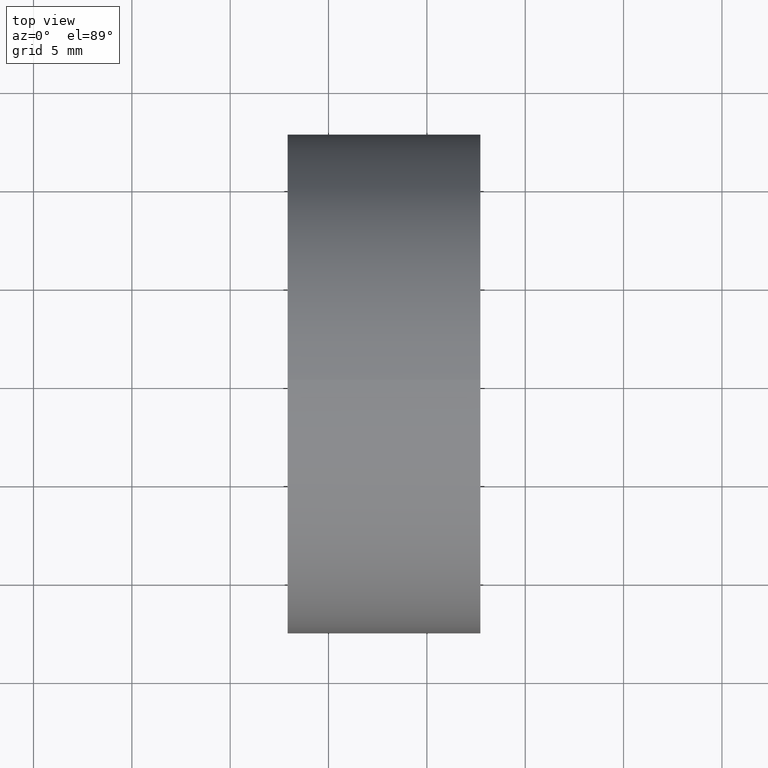
[diagram: clean part render]
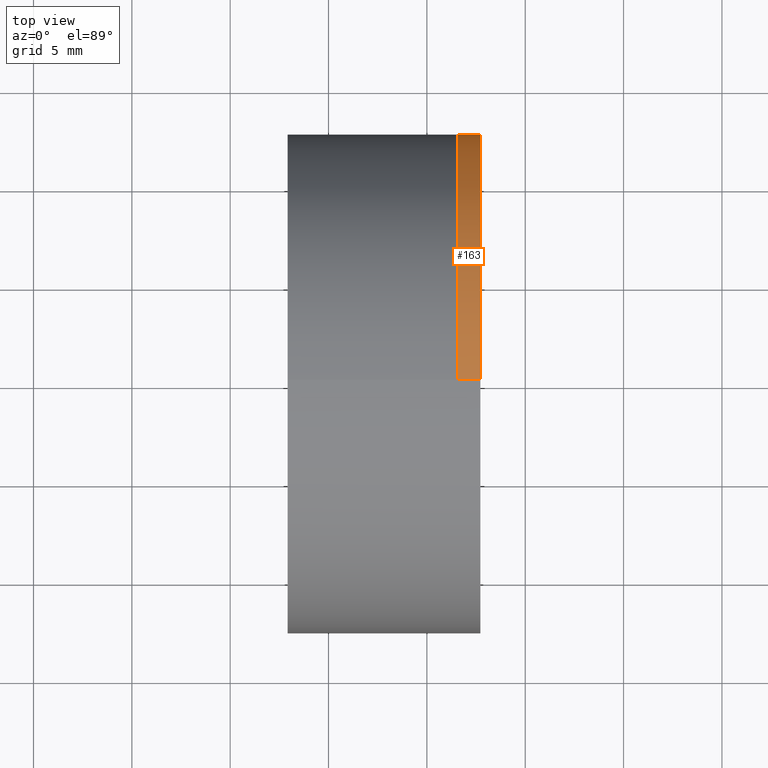
[diagram: same view with one face highlighted and labeled with its STEP entity id]
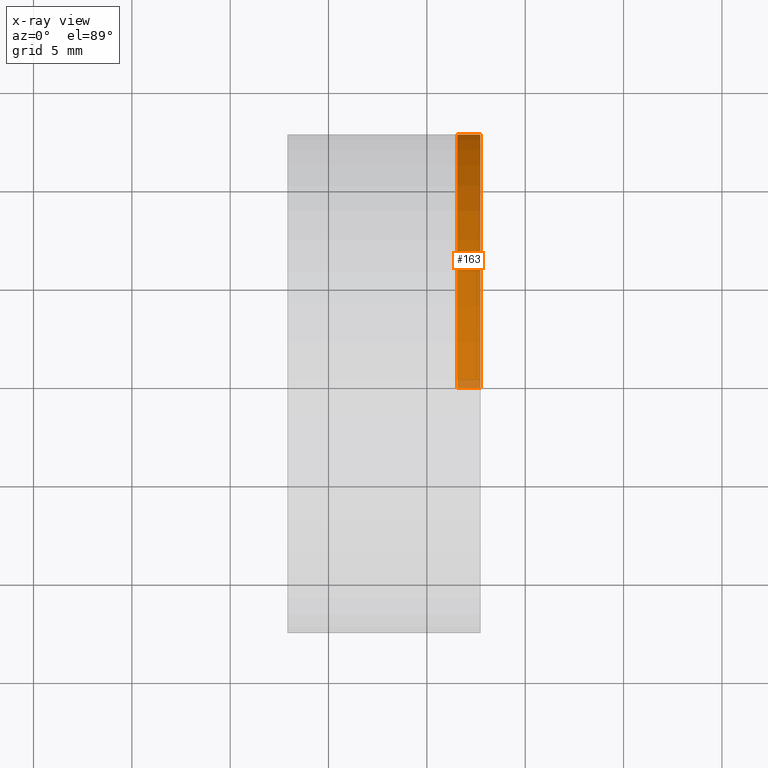
[diagram: x-ray of the same camera — body ghosted, the highlighted face saturated]
A machine part, top view. The second image highlights one B-rep face of the part: STEP entity #163.
The next image is the same camera in x-ray: the body ghosted, the highlighted face saturated — about 3% of this face is hidden behind the body in this view.
In plain terms, the highlighted cylindrical surface (partial cylindrical patch) has radius 12.7 mm, axis along (-1, -0, -0).
Its self-contained STEP definition (entity closure, byte-faithful):
#8 = ORIENTED_EDGE ( 'NONE', *, *, #75, .T. ) ;
#15 = AXIS2_PLACEMENT_3D ( 'NONE', #182, #237, #263 ) ;
#26 = CARTESIAN_POINT ( 'NONE',  ( 152.9182642356440200, 1.555301434917130500E-015, -12.69999999999993500 ) ) ;
#30 = DIRECTION ( 'NONE',  ( -1.000000000000000000, -0.0000000000000000000, -0.0000000000000000000 ) ) ;
#32 = DIRECTION ( 'NONE',  ( -1.000000000000000000, -0.0000000000000000000, -0.0000000000000000000 ) ) ;
#33 = AXIS2_PLACEMENT_3D ( 'NONE', #85, #81, #319 ) ;
#36 = VERTEX_POINT ( 'NONE', #206 ) ;
#44 = VERTEX_POINT ( 'NONE', #218 ) ;
#52 = VERTEX_POINT ( 'NONE', #105 ) ;
#70 = AXIS2_PLACEMENT_3D ( 'NONE', #193, #30, #262 ) ;
#74 = CIRCLE ( 'NONE', #33, 12.69999999999993000 ) ;
#75 = EDGE_CURVE ( 'NONE', #345, #44, #156, .T. ) ;
#81 = DIRECTION ( 'NONE',  ( -1.000000000000000000, -0.0000000000000000000, -0.0000000000000000000 ) ) ;
#85 = CARTESIAN_POINT ( 'NONE',  ( 161.5418237581144500, 0.0000000000000000000, 0.0000000000000000000 ) ) ;
#91 = ORIENTED_EDGE ( 'NONE', *, *, #265, .T. ) ;
#96 = EDGE_CURVE ( 'NONE', #52, #44, #74, .T. ) ;
#105 = CARTESIAN_POINT ( 'NONE',  ( 161.5418237581144500, 0.0000000000000000000, 12.69999999999993500 ) ) ;
#108 = ORIENTED_EDGE ( 'NONE', *, *, #115, .F. ) ;
#115 = EDGE_CURVE ( 'NONE', #36, #52, #340, .T. ) ;
#122 = VECTOR ( 'NONE', #32, 1000.000000000000000 ) ;
#156 = LINE ( 'NONE', #26, #122 ) ;
#163 = ADVANCED_FACE ( 'NONE', ( #301 ), #183, .T. ) ;
#182 = CARTESIAN_POINT ( 'NONE',  ( 152.9182642356440200, 0.0000000000000000000, 0.0000000000000000000 ) ) ;
#183 = CYLINDRICAL_SURFACE ( 'NONE', #15, 12.69999999999993500 ) ;
#193 = CARTESIAN_POINT ( 'NONE',  ( 162.7215673305927900, 0.0000000000000000000, 0.0000000000000000000 ) ) ;
#204 = CARTESIAN_POINT ( 'NONE',  ( 162.7215673305927900, 1.555301434917131300E-015, -12.69999999999994100 ) ) ;
#206 = CARTESIAN_POINT ( 'NONE',  ( 162.7215673305927900, 0.0000000000000000000, 12.69999999999994100 ) ) ;
#218 = CARTESIAN_POINT ( 'NONE',  ( 161.5418237581144500, 1.555301434917130500E-015, -12.69999999999999600 ) ) ;
#237 = DIRECTION ( 'NONE',  ( -1.000000000000000000, -0.0000000000000000000, -0.0000000000000000000 ) ) ;
#241 = ORIENTED_EDGE ( 'NONE', *, *, #96, .F. ) ;
#253 = EDGE_LOOP ( 'NONE', ( #91, #8, #241, #108 ) ) ;
#262 = DIRECTION ( 'NONE',  ( 0.0000000000000000000, 0.0000000000000000000, 1.000000000000000000 ) ) ;
#263 = DIRECTION ( 'NONE',  ( 0.0000000000000000000, 0.0000000000000000000, 1.000000000000000000 ) ) ;
#265 = EDGE_CURVE ( 'NONE', #36, #345, #331, .T. ) ;
#266 = DIRECTION ( 'NONE',  ( -1.000000000000000000, -0.0000000000000000000, -0.0000000000000000000 ) ) ;
#301 = FACE_OUTER_BOUND ( 'NONE', #253, .T. ) ;
#319 = DIRECTION ( 'NONE',  ( 0.0000000000000000000, 0.0000000000000000000, 1.000000000000000000 ) ) ;
#331 = CIRCLE ( 'NONE', #70, 12.69999999999994100 ) ;
#336 = VECTOR ( 'NONE', #266, 1000.000000000000000 ) ;
#340 = LINE ( 'NONE', #343, #336 ) ;
#343 = CARTESIAN_POINT ( 'NONE',  ( 152.9182642356440200, 0.0000000000000000000, 12.69999999999993500 ) ) ;
#345 = VERTEX_POINT ( 'NONE', #204 ) ;